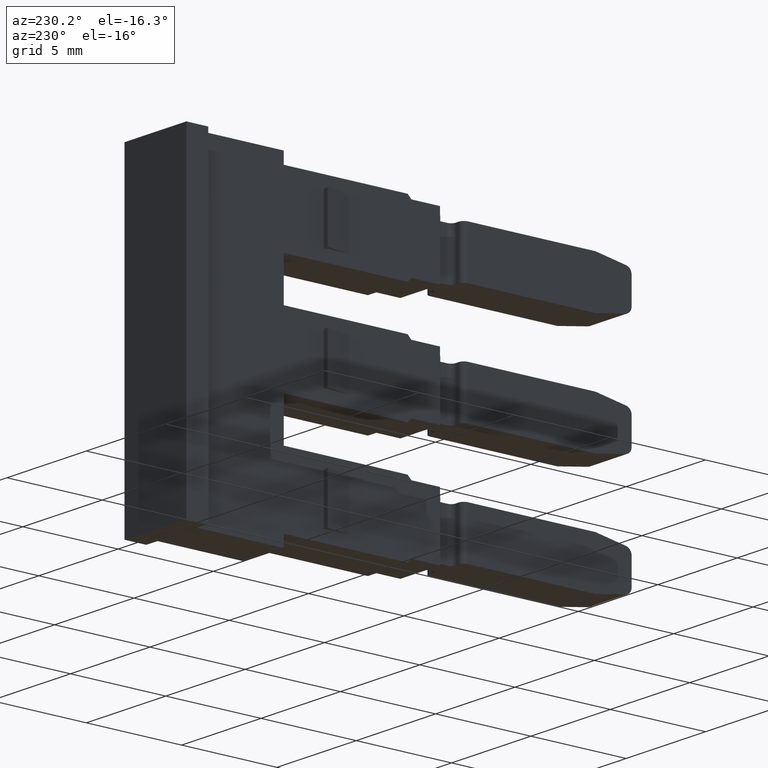
[diagram: clean part render]
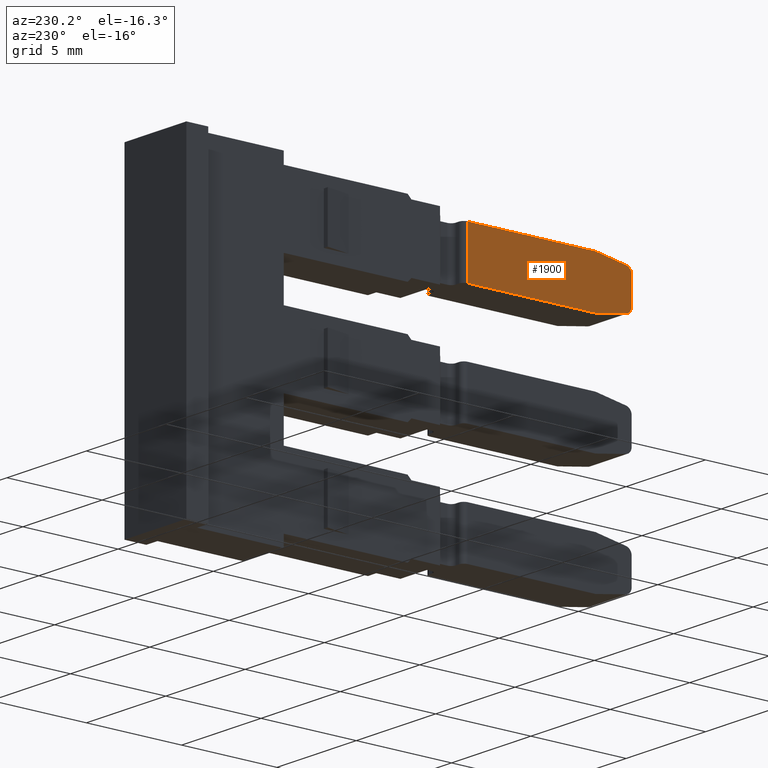
[diagram: same view with one face highlighted and labeled with its STEP entity id]
A machine part, auxiliary view. The second image highlights one B-rep face of the part: STEP entity #1900.
In plain terms, the highlighted planar face has unit normal (-1, -0, -0).
Its self-contained STEP definition (entity closure, byte-faithful):
#7 = AXIS2_PLACEMENT_3D ( 'NONE', #3567, #3561, #3562 ) ;
#14 = VECTOR ( 'NONE', #3579, 1000.000000000000000 ) ;
#15 = CIRCLE ( 'NONE', #7, 0.3499999999999892100 ) ;
#24 = VECTOR ( 'NONE', #3591, 1000.000000000000000 ) ;
#27 = AXIS2_PLACEMENT_3D ( 'NONE', #3621, #3599, #3600 ) ;
#28 = VECTOR ( 'NONE', #3660, 1000.000000000000000 ) ;
#31 = VECTOR ( 'NONE', #3649, 1000.000000000000100 ) ;
#33 = CIRCLE ( 'NONE', #27, 0.3499999999999753300 ) ;
#52 = VECTOR ( 'NONE', #3648, 999.9999999999998900 ) ;
#209 = AXIS2_PLACEMENT_3D ( 'NONE', #1126, #1166, #1218 ) ;
#217 = VECTOR ( 'NONE', #3687, 1000.000000000000000 ) ;
#1126 = CARTESIAN_POINT ( 'NONE',  ( 1456.818237421122100, 988.6778926471899900, -15.82084861506189600 ) ) ;
#1161 = FACE_OUTER_BOUND ( 'NONE', #2562, .T. ) ;
#1162 = PLANE ( 'NONE',  #209 ) ;
#1166 = DIRECTION ( 'NONE',  ( -1.000000000000000000, -8.755341356932190700E-015, -5.174141154057529600E-029 ) ) ;
#1218 = DIRECTION ( 'NONE',  ( 8.755341356932190700E-015, -1.000000000000000000, 0.0000000000000000000 ) ) ;
#1900 = ADVANCED_FACE ( 'NONE', ( #1161 ), #1162, .T. ) ;
#1952 = EDGE_CURVE ( 'NONE', #2351, #2335, #3543, .T. ) ;
#1960 = EDGE_CURVE ( 'NONE', #2360, #2339, #15, .T. ) ;
#1962 = EDGE_CURVE ( 'NONE', #2314, #2318, #3559, .T. ) ;
#1972 = EDGE_CURVE ( 'NONE', #2315, #2331, #33, .T. ) ;
#1979 = EDGE_CURVE ( 'NONE', #2351, #2318, #3634, .T. ) ;
#1983 = EDGE_CURVE ( 'NONE', #2315, #2314, #3669, .T. ) ;
#1987 = EDGE_CURVE ( 'NONE', #2335, #2339, #3677, .T. ) ;
#2000 = EDGE_CURVE ( 'NONE', #2360, #2331, #3692, .T. ) ;
#2314 = VERTEX_POINT ( 'NONE', #4085 ) ;
#2315 = VERTEX_POINT ( 'NONE', #4077 ) ;
#2318 = VERTEX_POINT ( 'NONE', #4067 ) ;
#2331 = VERTEX_POINT ( 'NONE', #4115 ) ;
#2335 = VERTEX_POINT ( 'NONE', #4133 ) ;
#2339 = VERTEX_POINT ( 'NONE', #4153 ) ;
#2351 = VERTEX_POINT ( 'NONE', #4145 ) ;
#2360 = VERTEX_POINT ( 'NONE', #4142 ) ;
#2562 = EDGE_LOOP ( 'NONE', ( #2750, #2795, #2802, #2784, #2804, #2799, #2755, #2787 ) ) ;
#2750 = ORIENTED_EDGE ( 'NONE', *, *, #1962, .T. ) ;
#2755 = ORIENTED_EDGE ( 'NONE', *, *, #1972, .F. ) ;
#2784 = ORIENTED_EDGE ( 'NONE', *, *, #1987, .T. ) ;
#2787 = ORIENTED_EDGE ( 'NONE', *, *, #1983, .T. ) ;
#2795 = ORIENTED_EDGE ( 'NONE', *, *, #1979, .F. ) ;
#2799 = ORIENTED_EDGE ( 'NONE', *, *, #2000, .T. ) ;
#2802 = ORIENTED_EDGE ( 'NONE', *, *, #1952, .T. ) ;
#2804 = ORIENTED_EDGE ( 'NONE', *, *, #1960, .F. ) ;
#3543 = LINE ( 'NONE', #3555, #14 ) ;
#3555 = CARTESIAN_POINT ( 'NONE',  ( 1456.818237421122100, 988.6778926471899900, -80.79999999999002100 ) ) ;
#3559 = LINE ( 'NONE', #3629, #24 ) ;
#3561 = DIRECTION ( 'NONE',  ( 1.000000000000000000, 5.817690394031370500E-016, 1.715124499442885300E-015 ) ) ;
#3562 = DIRECTION ( 'NONE',  ( 0.0000000000000000000, 0.0000000000000000000, -1.000000000000000000 ) ) ;
#3567 = CARTESIAN_POINT ( 'NONE',  ( 1456.818237421122100, 986.0446795375389700, -80.17192042437014300 ) ) ;
#3579 = DIRECTION ( 'NONE',  ( 8.755341356932190700E-015, -1.000000000000000000, 0.0000000000000000000 ) ) ;
#3591 = DIRECTION ( 'NONE',  ( -8.755341356932190700E-015, 1.000000000000000000, -0.0000000000000000000 ) ) ;
#3599 = DIRECTION ( 'NONE',  ( 1.000000000000000000, 5.817690394031370500E-016, 1.715124499442885300E-015 ) ) ;
#3600 = DIRECTION ( 'NONE',  ( 0.0000000000000000000, 0.0000000000000000000, -1.000000000000000000 ) ) ;
#3621 = CARTESIAN_POINT ( 'NONE',  ( 1456.818237421122100, 986.0446795375389700, -78.82879612739110100 ) ) ;
#3629 = CARTESIAN_POINT ( 'NONE',  ( 1456.818237421122100, 988.6778926471899900, -78.20000000017572000 ) ) ;
#3634 = LINE ( 'NONE', #3679, #28 ) ;
#3637 = CARTESIAN_POINT ( 'NONE',  ( 1456.818237421122100, 987.5911261469250300, -80.79999999999003500 ) ) ;
#3644 = CARTESIAN_POINT ( 'NONE',  ( 1456.818237421122100, 987.5951899124289600, -78.20000000026969600 ) ) ;
#3648 = DIRECTION ( 'NONE',  ( 0.0000000000000000000, 0.9848077530122177900, 0.1736481776668759300 ) ) ;
#3649 = DIRECTION ( 'NONE',  ( 0.0000000000000000000, -0.9848077530122103500, 0.1736481776669172600 ) ) ;
#3660 = DIRECTION ( 'NONE',  ( -5.167038929197629600E-029, -3.006023274397918700E-044, 1.000000000000000000 ) ) ;
#3669 = LINE ( 'NONE', #3644, #52 ) ;
#3677 = LINE ( 'NONE', #3637, #31 ) ;
#3679 = CARTESIAN_POINT ( 'NONE',  ( 1456.818237421122100, 994.2959515111355100, -15.82084861506189600 ) ) ;
#3687 = DIRECTION ( 'NONE',  ( 0.0000000000000000000, 0.0000000000000000000, 1.000000000000000000 ) ) ;
#3692 = LINE ( 'NONE', #3710, #217 ) ;
#3710 = CARTESIAN_POINT ( 'NONE',  ( 1456.818237421122100, 985.6946795375389500, -80.17192042437015700 ) ) ;
#4067 = CARTESIAN_POINT ( 'NONE',  ( 1456.818237421122100, 994.2959515111355100, -78.20000000022270100 ) ) ;
#4077 = CARTESIAN_POINT ( 'NONE',  ( 1456.818237421122100, 985.9839026753555800, -78.48411341383685200 ) ) ;
#4085 = CARTESIAN_POINT ( 'NONE',  ( 1456.818237421122100, 987.5951899124344200, -78.20000000014344700 ) ) ;
#4115 = CARTESIAN_POINT ( 'NONE',  ( 1456.818237421122100, 985.6946795375389500, -78.82879612739110100 ) ) ;
#4133 = CARTESIAN_POINT ( 'NONE',  ( 1456.818237421122100, 987.5911261469276500, -80.79999999998857200 ) ) ;
#4142 = CARTESIAN_POINT ( 'NONE',  ( 1456.818237421122100, 985.6946795375389500, -80.17192042437014300 ) ) ;
#4145 = CARTESIAN_POINT ( 'NONE',  ( 1456.818237421122100, 994.2959515111355100, -80.79999999998906900 ) ) ;
#4153 = CARTESIAN_POINT ( 'NONE',  ( 1456.818237421122100, 985.9839026753554700, -80.51660313792443400 ) ) ;